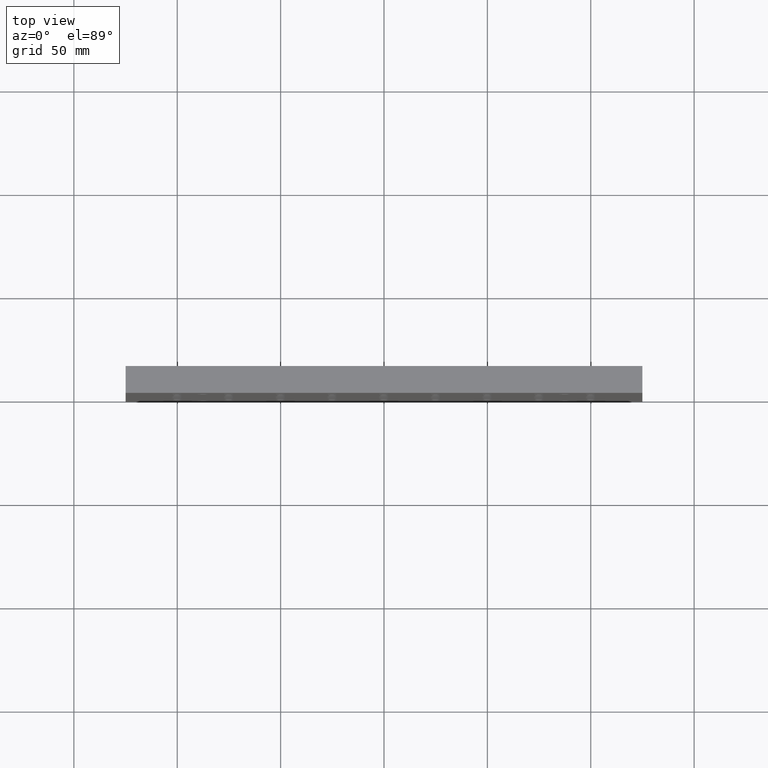
[diagram: clean part render]
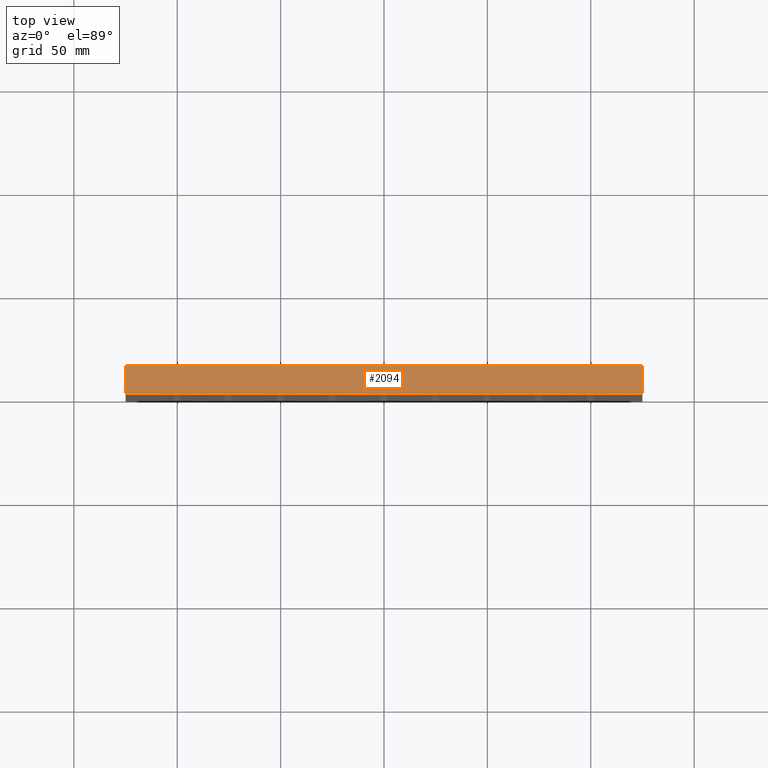
[diagram: same view with one face highlighted and labeled with its STEP entity id]
A machine part, top view. The second image highlights one B-rep face of the part: STEP entity #2094.
In plain terms, the highlighted planar face has unit normal (0, 0, -1).
Its self-contained STEP definition (entity closure, byte-faithful):
#42 = ORIENTED_EDGE ( 'NONE', *, *, #2404, .T. ) ;
#113 = VECTOR ( 'NONE', #2623, 1000.000000000000000 ) ;
#285 = CARTESIAN_POINT ( 'NONE',  ( 0.000000000000000000, 13.00000000000000178, 125.0000000000000000 ) ) ;
#471 = LINE ( 'NONE', #285, #747 ) ;
#552 = ORIENTED_EDGE ( 'NONE', *, *, #603, .F. ) ;
#586 = VERTEX_POINT ( 'NONE', #1772 ) ;
#603 = EDGE_CURVE ( 'NONE', #586, #2836, #3079, .T. ) ;
#606 = ORIENTED_EDGE ( 'NONE', *, *, #1673, .F. ) ;
#615 = FACE_OUTER_BOUND ( 'NONE', #1126, .T. ) ;
#632 = DIRECTION ( 'NONE',  ( 0.000000000000000000, 0.000000000000000000, -1.000000000000000000 ) ) ;
#747 = VECTOR ( 'NONE', #2034, 1000.000000000000000 ) ;
#991 = CARTESIAN_POINT ( 'NONE',  ( -125.0000000000000000, 13.00000000000000178, 125.0000000000000000 ) ) ;
#1126 = EDGE_LOOP ( 'NONE', ( #1984, #606, #552, #42 ) ) ;
#1231 = VECTOR ( 'NONE', #1349, 1000.000000000000000 ) ;
#1300 = CARTESIAN_POINT ( 'NONE',  ( -125.0000000000000000, 0.000000000000000000, 125.0000000000000000 ) ) ;
#1349 = DIRECTION ( 'NONE',  ( 0.000000000000000000, 1.000000000000000000, -0.000000000000000000 ) ) ;
#1479 = VECTOR ( 'NONE', #2306, 1000.000000000000000 ) ;
#1551 = LINE ( 'NONE', #1598, #1231 ) ;
#1598 = CARTESIAN_POINT ( 'NONE',  ( 125.0000000000000000, 13.00000000000000178, 125.0000000000000000 ) ) ;
#1657 = CARTESIAN_POINT ( 'NONE',  ( -125.0000000000000000, 13.00000000000000178, 125.0000000000000000 ) ) ;
#1673 = EDGE_CURVE ( 'NONE', #2836, #1895, #471, .T. ) ;
#1772 = CARTESIAN_POINT ( 'NONE',  ( -125.0000000000000000, 0.000000000000000000, 125.0000000000000000 ) ) ;
#1895 = VERTEX_POINT ( 'NONE', #2529 ) ;
#1907 = DIRECTION ( 'NONE',  ( -1.000000000000000000, 0.000000000000000000, -0.000000000000000000 ) ) ;
#1948 = VERTEX_POINT ( 'NONE', #2545 ) ;
#1984 = ORIENTED_EDGE ( 'NONE', *, *, #2447, .T. ) ;
#2034 = DIRECTION ( 'NONE',  ( 1.000000000000000000, 0.000000000000000000, -0.000000000000000000 ) ) ;
#2094 = ADVANCED_FACE ( 'NONE', ( #615 ), #3098, .F. ) ;
#2306 = DIRECTION ( 'NONE',  ( 0.000000000000000000, 1.000000000000000000, 0.000000000000000000 ) ) ;
#2404 = EDGE_CURVE ( 'NONE', #586, #1948, #3006, .T. ) ;
#2447 = EDGE_CURVE ( 'NONE', #1948, #1895, #1551, .T. ) ;
#2529 = CARTESIAN_POINT ( 'NONE',  ( 125.0000000000000000, 13.00000000000000178, 125.0000000000000000 ) ) ;
#2545 = CARTESIAN_POINT ( 'NONE',  ( 125.0000000000000000, 0.000000000000000000, 125.0000000000000000 ) ) ;
#2623 = DIRECTION ( 'NONE',  ( 1.000000000000000000, -0.000000000000000000, 0.000000000000000000 ) ) ;
#2779 = CARTESIAN_POINT ( 'NONE',  ( -125.0000000000000000, 13.00000000000000178, 125.0000000000000000 ) ) ;
#2836 = VERTEX_POINT ( 'NONE', #991 ) ;
#3006 = LINE ( 'NONE', #1300, #113 ) ;
#3079 = LINE ( 'NONE', #2779, #1479 ) ;
#3098 = PLANE ( 'NONE',  #3184 ) ;
#3184 = AXIS2_PLACEMENT_3D ( 'NONE', #1657, #632, #1907 ) ;